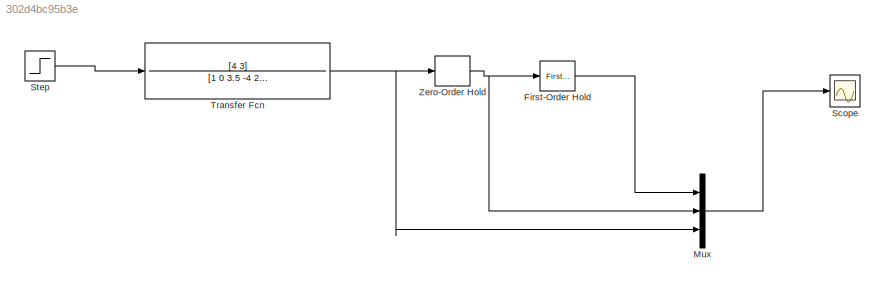
MODEL slx_302d4bc95b3e
KIND model
CONFIG AbsTol = auto
CONFIG EnableMultiTasking = off
CONFIG FixedStep = auto
CONFIG MaxStep = auto
CONFIG MinStep = auto
CONFIG RelTol = 1e-3
CONFIG SampleTimeConstraint = Unconstrained
CONFIG Solver = VariableStepAuto
CONFIG SolverName = VariableStepAuto
CONFIG StartTime = 0.0
CONFIG StopTime = 10.0
BLOCK [Reference] First-Order Hold  REF=simulink/Discrete/First-Order
Hold
  DisableCoverage = on
  Ports = [1, 1]
  SourceBlock = simulink/Discrete/First-Order\nHold
  SourceProductBaseCode = SL
  SourceProductName = Simulink
  SourceType = First-Order Hold
BLOCK [Mux] Mux
  DisplayOption = bar
  Inputs = 3
  Ports = [3, 1]
BLOCK [Scope] Scope
  NumInputPorts = 1
  Ports = [1]
  ScopeSpecificationString = Simulink.scopes.TimeScopeBlockCfg('CurrentConfiguration', extmgr.ConfigurationSet(extmgr.Configuration('Core','General UI',true),extmgr.Configuration('Core','Source UI',true),extmgr.Configuration('Sources','WiredSimulink',true),extmgr.Configuration('Visuals','Time Domain',true,'SerializedDisplays',{struct('MinYLimReal','-1001.48484','MaxYLimReal','522.95593','YLabelReal','','MinYLimMag','  0.00000...<+1418ch>
BLOCK [Step] Step
  SampleTime = 0
BLOCK [TransferFcn] Transfer Fcn
  Denominator = [1 0 3.5 -4 2 6]
  Numerator = [4 3]
BLOCK [ZeroOrderHold] Zero-Order Hold
  SampleTime = 0.05
LINE First-Order Hold:1 -> Mux:1
LINE Mux:1 -> Scope:1
LINE Step:1 -> Transfer Fcn:1
NET Transfer Fcn:1 -> Mux:3, Zero-Order Hold:1
NET Zero-Order Hold:1 -> First-Order Hold:1, Mux:2
note: NET lines group one-source signal fan-out (src -> all destinations, sorted); 1:1 wires keep LINE
